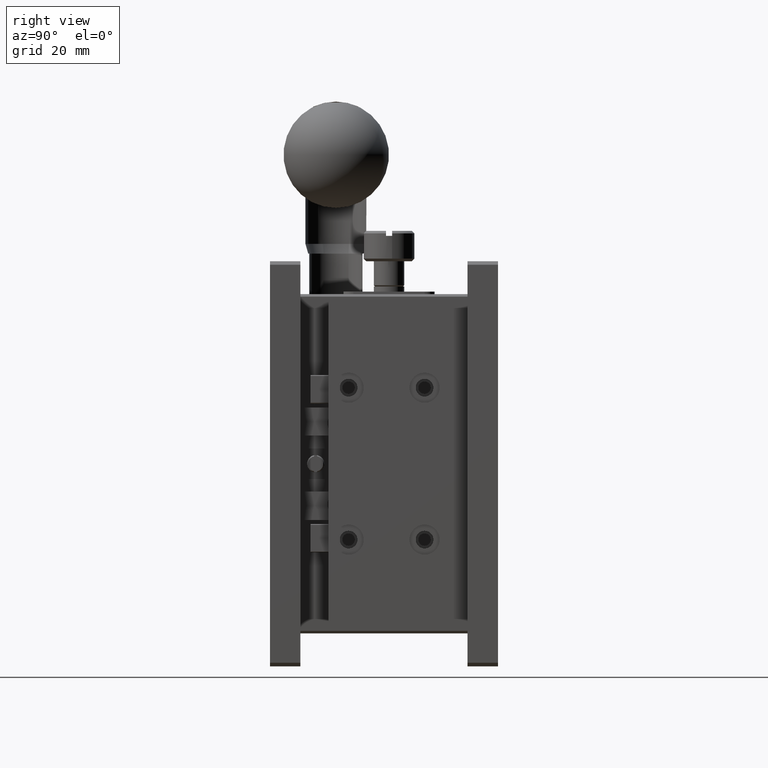
[diagram: clean part render]
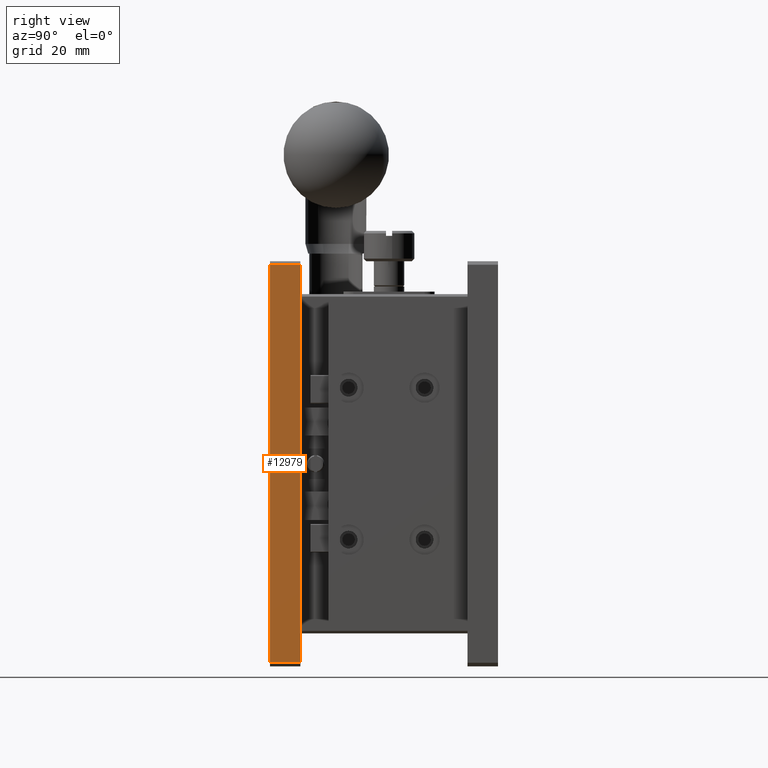
[diagram: same view with one face highlighted and labeled with its STEP entity id]
A machine part, right view. The second image highlights one B-rep face of the part: STEP entity #12979.
In plain terms, the highlighted planar face has unit normal (-1, 0, 0).
Its self-contained STEP definition (entity closure, byte-faithful):
#8 = VECTOR ( 'NONE', #9457, 1000.000000000000000 ) ;
#112 = CARTESIAN_POINT ( 'NONE',  ( 80.00000000000001421, -1.951563910473907981E-15, -79.29000000000000625 ) ) ;
#380 = LINE ( 'NONE', #4929, #8 ) ;
#580 = PLANE ( 'NONE',  #3754 ) ;
#1514 = ORIENTED_EDGE ( 'NONE', *, *, #6454, .F. ) ;
#2170 = EDGE_CURVE ( 'NONE', #11702, #9111, #12153, .T. ) ;
#3598 = VECTOR ( 'NONE', #8091, 1000.000000000000000 ) ;
#3754 = AXIS2_PLACEMENT_3D ( 'NONE', #6029, #7202, #9648 ) ;
#4540 = CARTESIAN_POINT ( 'NONE',  ( 80.00000000000000000, 0.000000000000000000, 0.000000000000000000 ) ) ;
#4846 = FACE_OUTER_BOUND ( 'NONE', #7796, .T. ) ;
#4929 = CARTESIAN_POINT ( 'NONE',  ( 80.00000000000000000, 6.000000000000000000, -79.29000000000000625 ) ) ;
#5428 = VECTOR ( 'NONE', #14309, 1000.000000000000000 ) ;
#5953 = CARTESIAN_POINT ( 'NONE',  ( 80.00000000000000000, 0.000000000000000000, -0.7099999999999998535 ) ) ;
#6029 = CARTESIAN_POINT ( 'NONE',  ( 80.00000000000000000, 6.000000000000000000, -0.7099999999999999645 ) ) ;
#6454 = EDGE_CURVE ( 'NONE', #9111, #7632, #14559, .T. ) ;
#7036 = VERTEX_POINT ( 'NONE', #112 ) ;
#7202 = DIRECTION ( 'NONE',  ( -1.000000000000000000, 0.000000000000000000, 0.000000000000000000 ) ) ;
#7240 = ORIENTED_EDGE ( 'NONE', *, *, #9486, .T. ) ;
#7632 = VERTEX_POINT ( 'NONE', #11966 ) ;
#7678 = EDGE_CURVE ( 'NONE', #7632, #7036, #380, .T. ) ;
#7796 = EDGE_LOOP ( 'NONE', ( #12942, #1514, #9623, #7240 ) ) ;
#7871 = DIRECTION ( 'NONE',  ( -0.000000000000000000, -0.000000000000000000, -1.000000000000000000 ) ) ;
#8091 = DIRECTION ( 'NONE',  ( -0.000000000000000000, 0.000000000000000000, -1.000000000000000000 ) ) ;
#8109 = CARTESIAN_POINT ( 'NONE',  ( 80.00000000000000000, 6.000000000000000000, -0.7099999999999998535 ) ) ;
#9111 = VERTEX_POINT ( 'NONE', #8109 ) ;
#9457 = DIRECTION ( 'NONE',  ( -0.000000000000000000, -1.000000000000000000, 0.000000000000000000 ) ) ;
#9486 = EDGE_CURVE ( 'NONE', #11702, #7036, #11426, .T. ) ;
#9623 = ORIENTED_EDGE ( 'NONE', *, *, #2170, .F. ) ;
#9648 = DIRECTION ( 'NONE',  ( 0.000000000000000000, 0.000000000000000000, 1.000000000000000000 ) ) ;
#11426 = LINE ( 'NONE', #4540, #3598 ) ;
#11702 = VERTEX_POINT ( 'NONE', #5953 ) ;
#11966 = CARTESIAN_POINT ( 'NONE',  ( 80.00000000000001421, 6.000000000000000000, -79.29000000000000625 ) ) ;
#12153 = LINE ( 'NONE', #13108, #5428 ) ;
#12241 = CARTESIAN_POINT ( 'NONE',  ( 80.00000000000000000, 6.000000000000000000, -0.7099999999999999645 ) ) ;
#12942 = ORIENTED_EDGE ( 'NONE', *, *, #7678, .F. ) ;
#12979 = ADVANCED_FACE ( 'NONE', ( #4846 ), #580, .F. ) ;
#13108 = CARTESIAN_POINT ( 'NONE',  ( 80.00000000000000000, 6.000000000000000000, -0.7099999999999999645 ) ) ;
#14309 = DIRECTION ( 'NONE',  ( 0.000000000000000000, 1.000000000000000000, -0.000000000000000000 ) ) ;
#14456 = VECTOR ( 'NONE', #7871, 1000.000000000000000 ) ;
#14559 = LINE ( 'NONE', #12241, #14456 ) ;